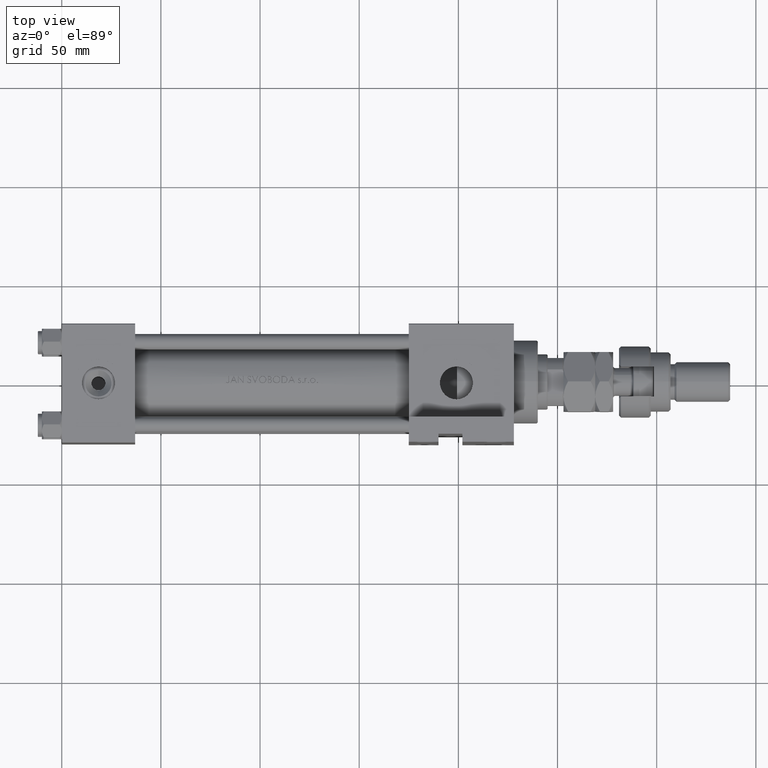
[diagram: clean part render]
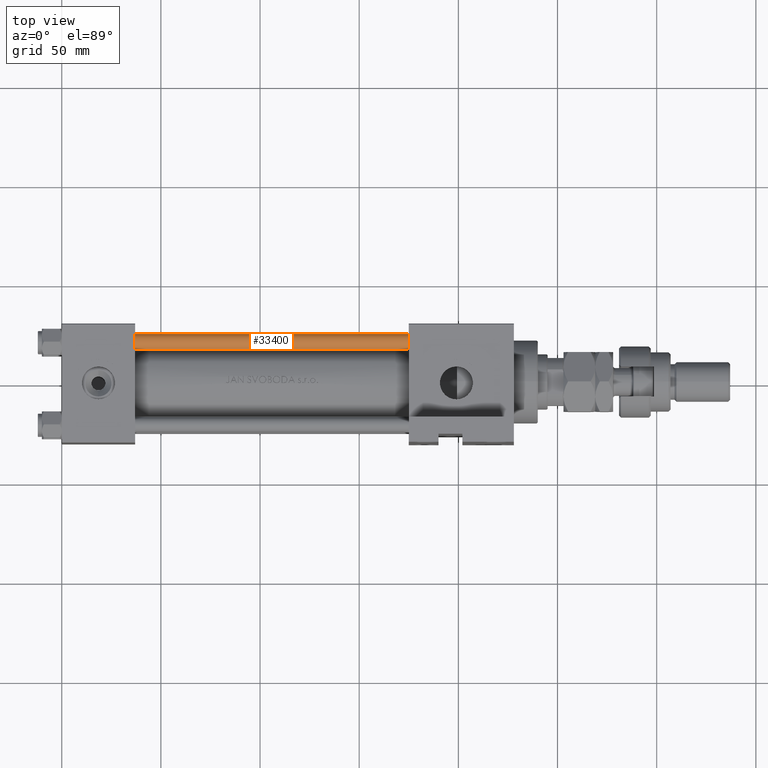
[diagram: same view with one face highlighted and labeled with its STEP entity id]
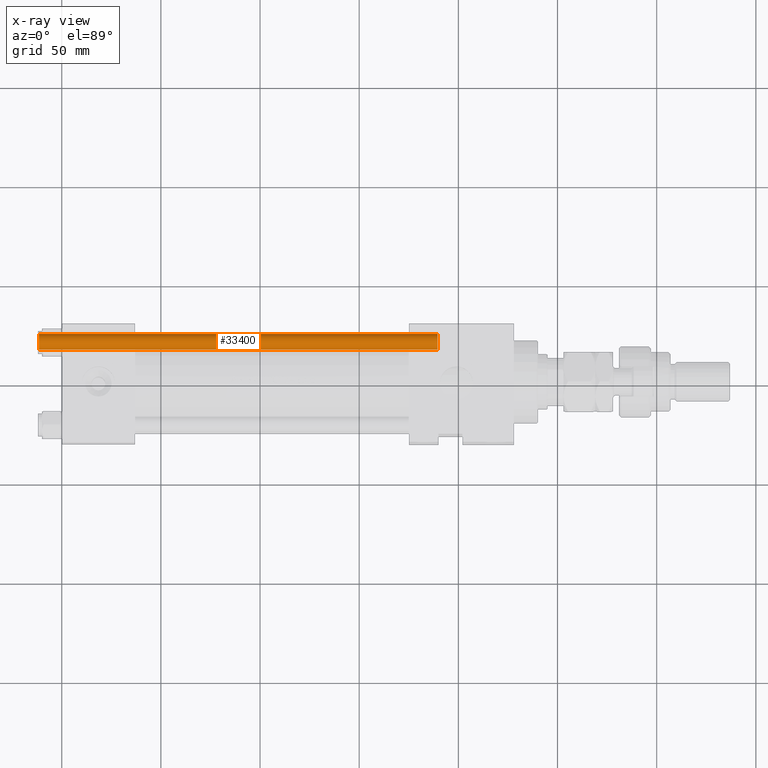
[diagram: x-ray of the same camera — body ghosted, the highlighted face saturated]
A machine part, top view. The second image highlights one B-rep face of the part: STEP entity #33400.
The next image is the same camera in x-ray: the body ghosted, the highlighted face saturated — about 0% of this face is hidden behind the body in this view.
In plain terms, the highlighted cylindrical surface (edge-blend (fillet) strip) has radius 4 mm, axis along (1, -0, 0).
Its self-contained STEP definition (entity closure, byte-faithful):
#657 = EDGE_CURVE ( 'NONE', #25502, #18917, #13554, .T. ) ;
#1565 = DIRECTION ( 'NONE',  ( -1.000000000000000000, 0.000000000000000000, 0.000000000000000000 ) ) ;
#4232 = DIRECTION ( 'NONE',  ( 1.000000000000000000, 0.000000000000000000, 0.000000000000000000 ) ) ;
#5142 = DIRECTION ( 'NONE',  ( 1.000000000000000000, 0.000000000000000000, 0.000000000000000000 ) ) ;
#5251 = EDGE_CURVE ( 'NONE', #17584, #15916, #44877, .T. ) ;
#5639 = CYLINDRICAL_SURFACE ( 'NONE', #38856, 4.000000000000000000 ) ;
#9467 = ORIENTED_EDGE ( 'NONE', *, *, #657, .T. ) ;
#10343 = DIRECTION ( 'NONE',  ( -0.000000000000000000, -0.000000000000000000, -1.000000000000000000 ) ) ;
#11404 = ORIENTED_EDGE ( 'NONE', *, *, #50375, .F. ) ;
#12747 = DIRECTION ( 'NONE',  ( 0.000000000000000000, 0.000000000000000000, -1.000000000000000000 ) ) ;
#13554 = CIRCLE ( 'NONE', #40416, 4.000000000000000000 ) ;
#15916 = VERTEX_POINT ( 'NONE', #37422 ) ;
#17584 = VERTEX_POINT ( 'NONE', #31314 ) ;
#17747 = EDGE_LOOP ( 'NONE', ( #11404, #51552, #17866, #9467 ) ) ;
#17866 = ORIENTED_EDGE ( 'NONE', *, *, #50864, .T. ) ;
#18115 = FACE_OUTER_BOUND ( 'NONE', #17747, .T. ) ;
#18917 = VERTEX_POINT ( 'NONE', #44659 ) ;
#21028 = LINE ( 'NONE', #50829, #43541 ) ;
#21956 = CARTESIAN_POINT ( 'NONE',  ( 0.000000000000000000, 0.000000000000000000, 201.5000000000000000 ) ) ;
#22186 = DIRECTION ( 'NONE',  ( -0.000000000000000000, -0.000000000000000000, -1.000000000000000000 ) ) ;
#22815 = LINE ( 'NONE', #31231, #49623 ) ;
#25502 = VERTEX_POINT ( 'NONE', #41281 ) ;
#31231 = CARTESIAN_POINT ( 'NONE',  ( 4.000000000000000000, 4.898587196589412829E-16, 202.0000000000000000 ) ) ;
#31314 = CARTESIAN_POINT ( 'NONE',  ( 4.000000000000000000, 4.898587196589412829E-16, 201.5000000000000000 ) ) ;
#33400 = ADVANCED_FACE ( 'NONE', ( #18115 ), #5639, .T. ) ;
#35709 = CARTESIAN_POINT ( 'NONE',  ( 0.000000000000000000, 0.000000000000000000, 202.0000000000000000 ) ) ;
#37422 = CARTESIAN_POINT ( 'NONE',  ( -4.000000000000000000, 0.000000000000000000, 201.5000000000000000 ) ) ;
#37549 = DIRECTION ( 'NONE',  ( -0.000000000000000000, -0.000000000000000000, -1.000000000000000000 ) ) ;
#38356 = DIRECTION ( 'NONE',  ( -0.000000000000000000, -0.000000000000000000, 1.000000000000000000 ) ) ;
#38856 = AXIS2_PLACEMENT_3D ( 'NONE', #35709, #22186, #1565 ) ;
#40416 = AXIS2_PLACEMENT_3D ( 'NONE', #50575, #38356, #4232 ) ;
#41281 = CARTESIAN_POINT ( 'NONE',  ( -4.000000000000000000, 0.000000000000000000, 0.5000000000000004441 ) ) ;
#43541 = VECTOR ( 'NONE', #37549, 1000.000000000000000 ) ;
#44659 = CARTESIAN_POINT ( 'NONE',  ( 4.000000000000000000, 4.898587196589412829E-16, 0.5000000000000004441 ) ) ;
#44877 = CIRCLE ( 'NONE', #45766, 4.000000000000000000 ) ;
#45766 = AXIS2_PLACEMENT_3D ( 'NONE', #21956, #12747, #5142 ) ;
#49623 = VECTOR ( 'NONE', #10343, 1000.000000000000000 ) ;
#50375 = EDGE_CURVE ( 'NONE', #17584, #18917, #22815, .T. ) ;
#50575 = CARTESIAN_POINT ( 'NONE',  ( 0.000000000000000000, 0.000000000000000000, 0.5000000000000004441 ) ) ;
#50829 = CARTESIAN_POINT ( 'NONE',  ( -4.000000000000000000, 0.000000000000000000, 202.0000000000000000 ) ) ;
#50864 = EDGE_CURVE ( 'NONE', #15916, #25502, #21028, .T. ) ;
#51552 = ORIENTED_EDGE ( 'NONE', *, *, #5251, .T. ) ;